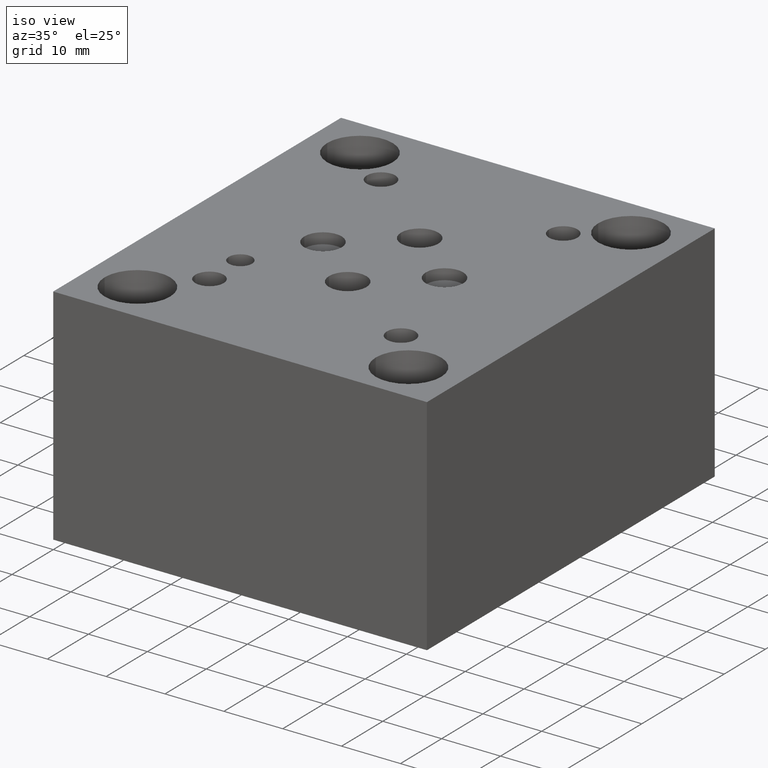
[diagram: clean part render]
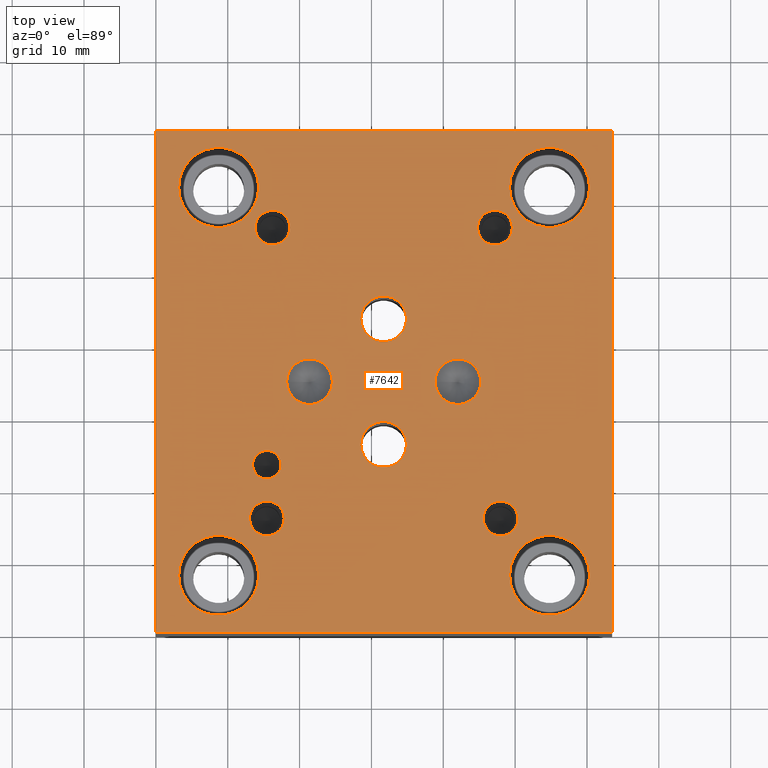
[diagram: tour spotlight — one face highlighted and labeled with its STEP entity id]
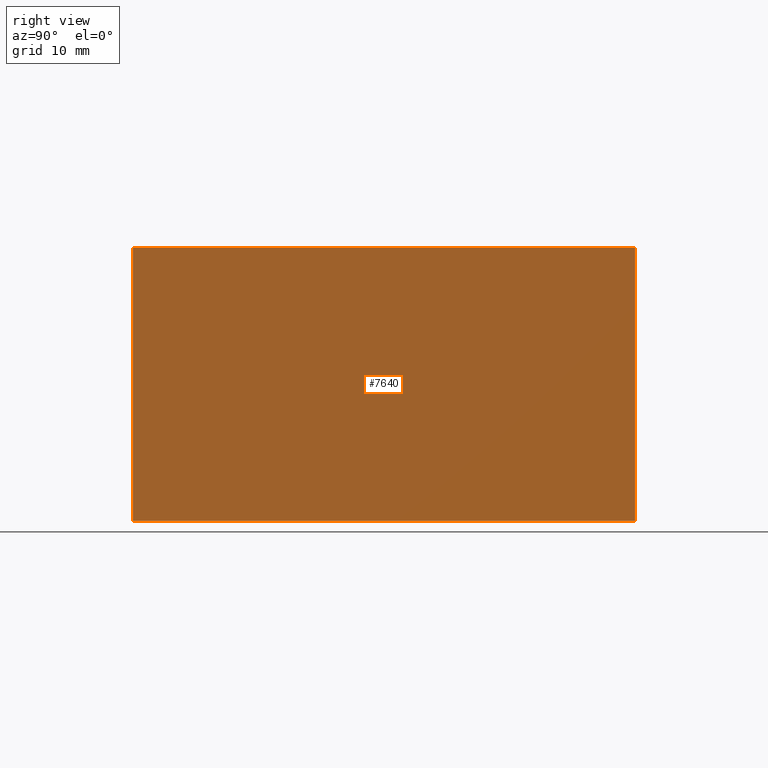
[diagram: tour spotlight — one face highlighted and labeled with its STEP entity id]
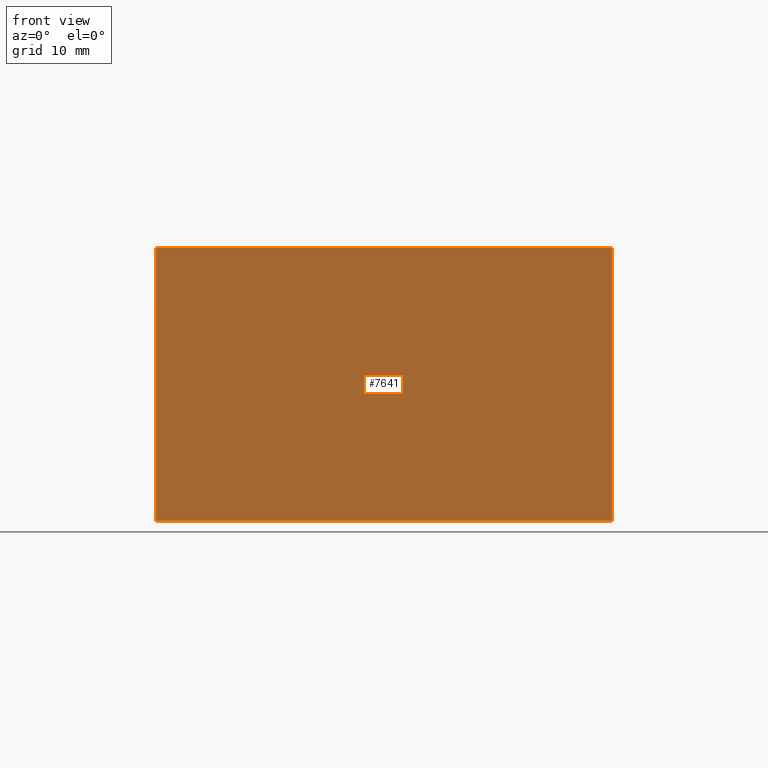
[diagram: tour spotlight — one face highlighted and labeled with its STEP entity id]
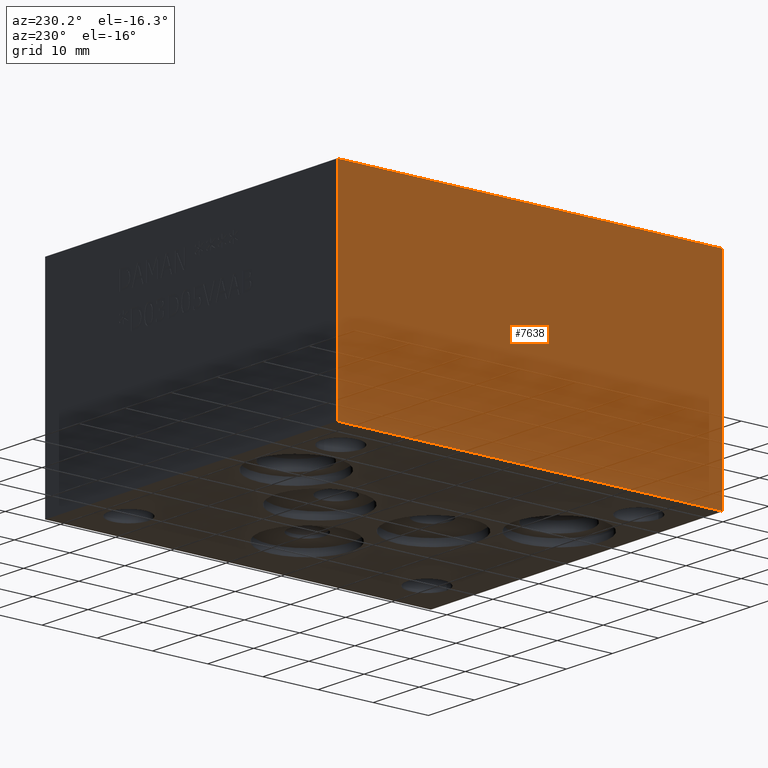
[diagram: tour spotlight — one face highlighted and labeled with its STEP entity id]
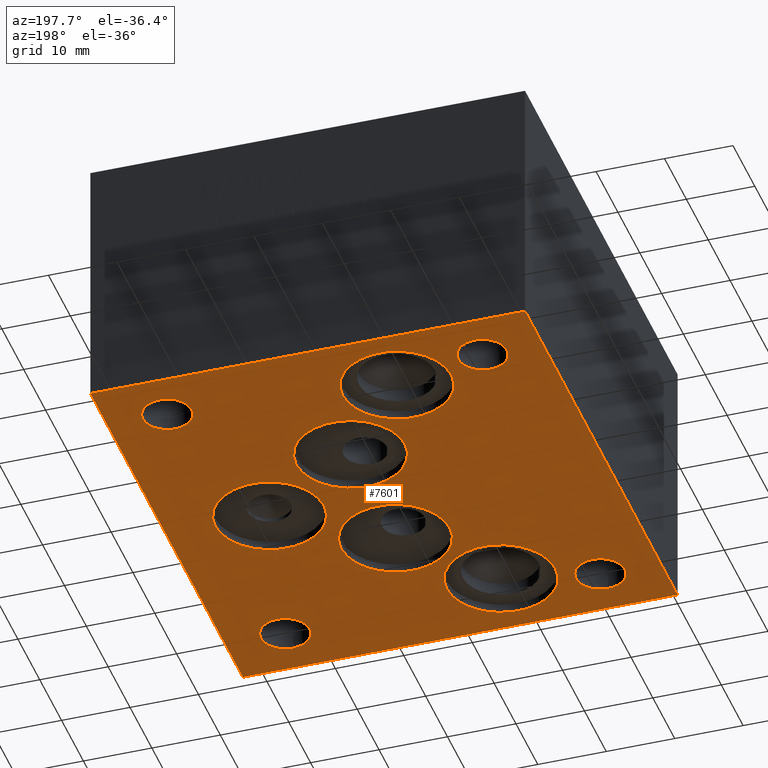
[diagram: tour spotlight — one face highlighted and labeled with its STEP entity id]
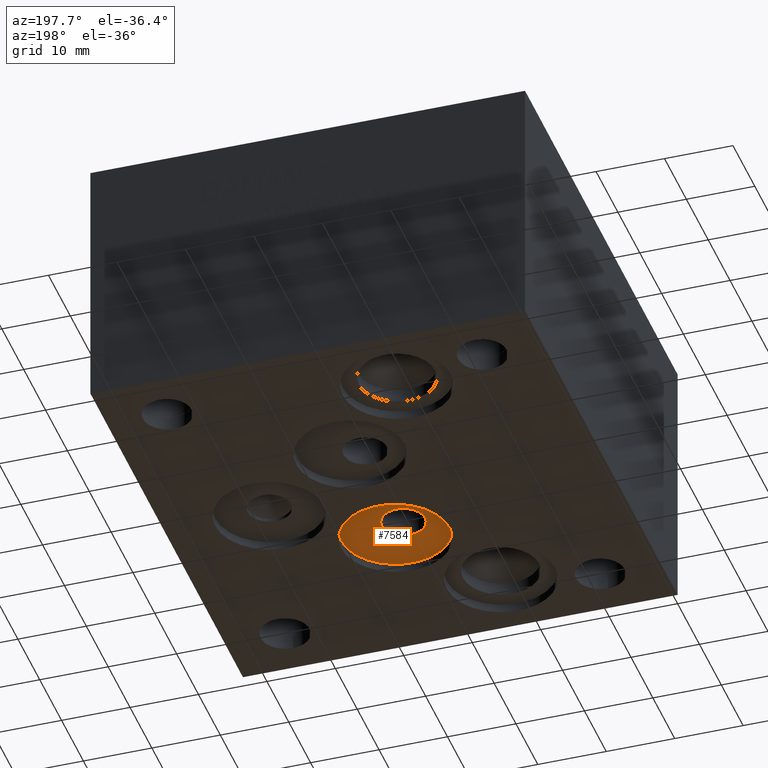
[diagram: tour spotlight — one face highlighted and labeled with its STEP entity id]
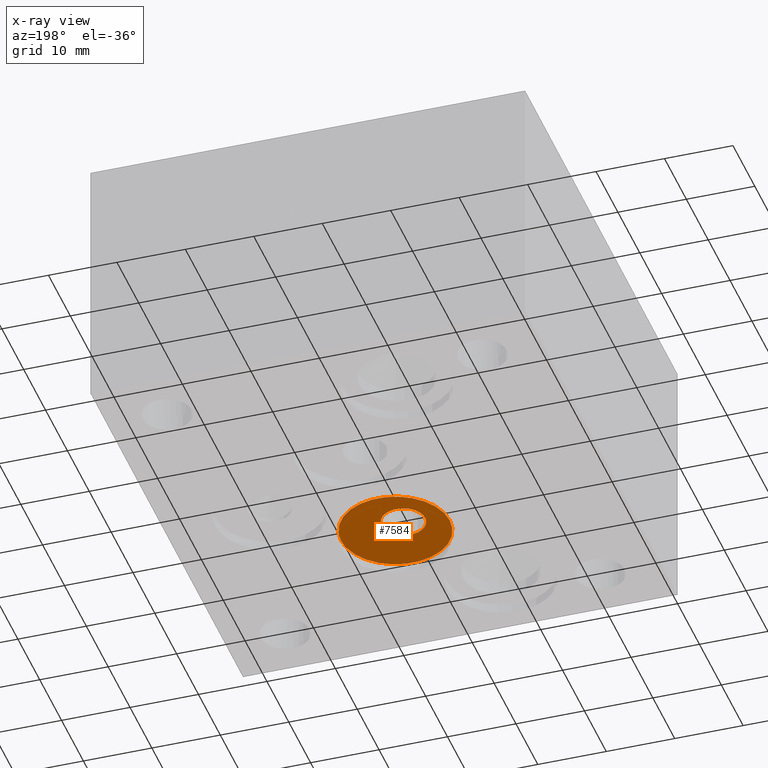
[diagram: x-ray of the same camera — body ghosted, this tour face saturated]
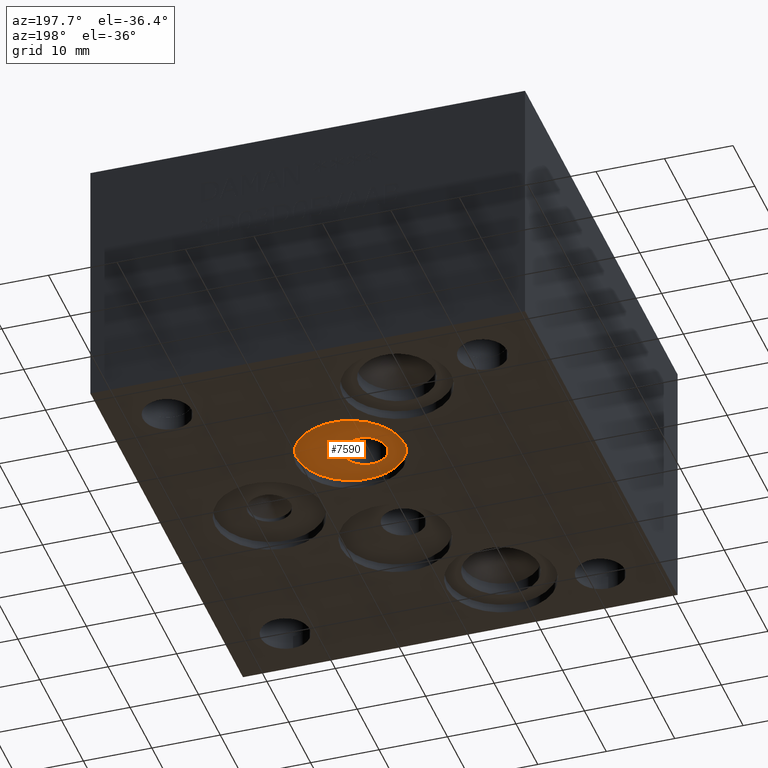
[diagram: tour spotlight — one face highlighted and labeled with its STEP entity id]
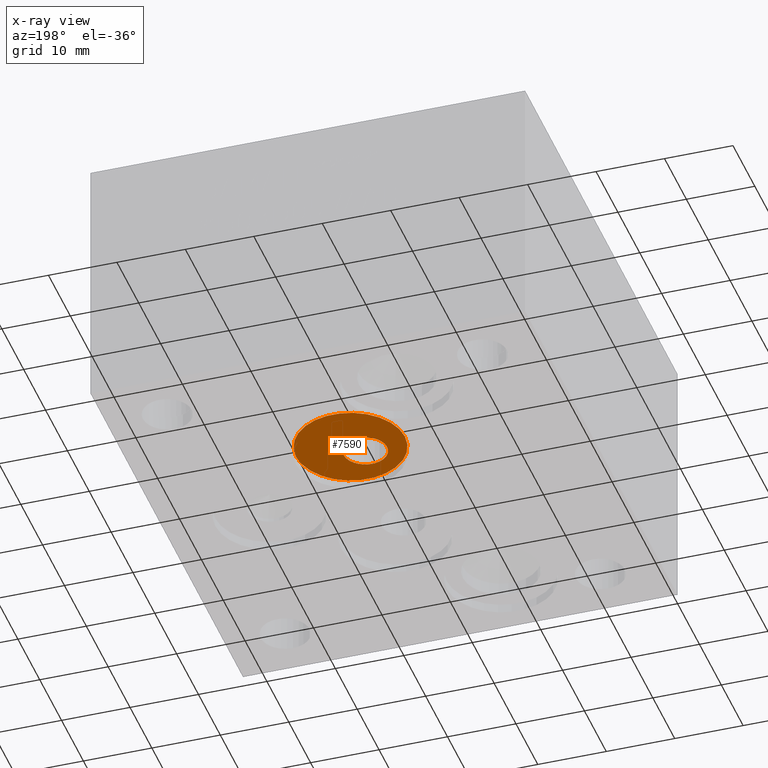
[diagram: x-ray of the same camera — body ghosted, this tour face saturated]
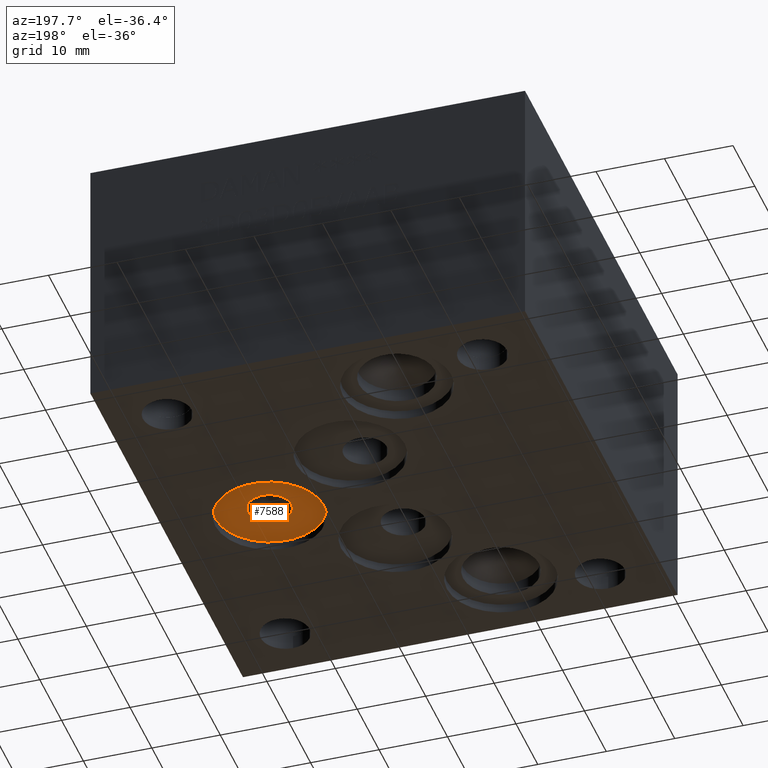
[diagram: tour spotlight — one face highlighted and labeled with its STEP entity id]
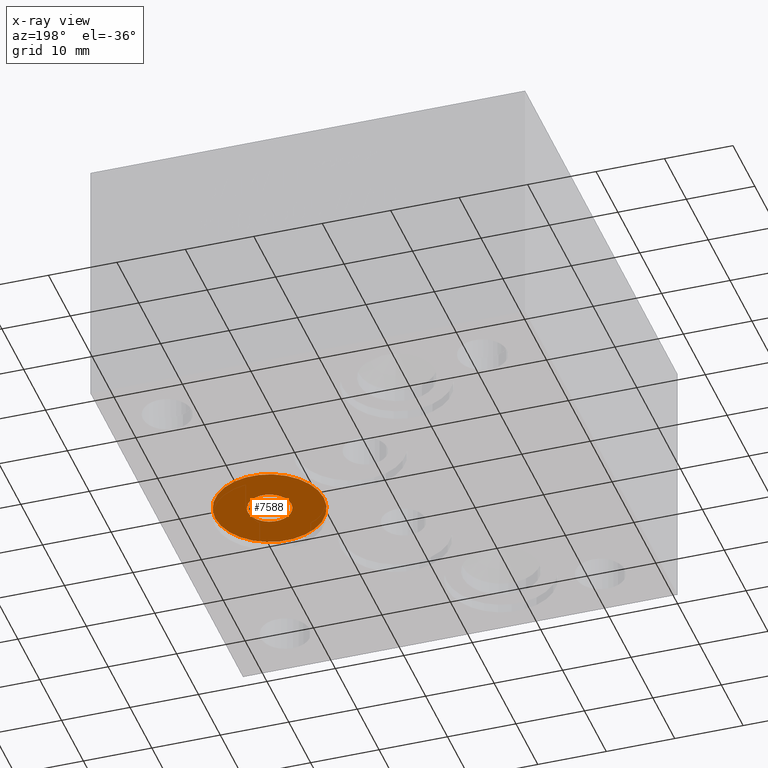
[diagram: x-ray of the same camera — body ghosted, this tour face saturated]
A machine part: a face-by-face anatomy tour. The part has 396 B-rep faces; the first image is the clean iso view, then the 8 largest visible faces are spotlighted one at a time (largest first), each with its STEP entity span.

Face 1 — top view, entity #7642. In plain terms, the highlighted planar face has unit normal (0, 0, 1).
Definition (entity closure, byte-faithful):
#81=CIRCLE('',#7957,5.5626);
#84=CIRCLE('',#7963,5.5626);
#87=CIRCLE('',#7969,5.5626);
#90=CIRCLE('',#7975,5.5626);
#91=CIRCLE('',#7978,3.175);
#92=CIRCLE('',#7980,3.175);
#94=CIRCLE('',#7984,3.175);
#96=CIRCLE('',#7988,3.175);
#98=CIRCLE('',#7992,1.9812);
#102=CIRCLE('',#7999,2.413);
#106=CIRCLE('',#8007,2.413);
#110=CIRCLE('',#8015,2.413);
#114=CIRCLE('',#8023,2.413);
#181=FACE_BOUND('',#1326,.T.);
#182=FACE_BOUND('',#1327,.T.);
#183=FACE_BOUND('',#1328,.T.);
#184=FACE_BOUND('',#1329,.T.);
#185=FACE_BOUND('',#1330,.T.);
#186=FACE_BOUND('',#1331,.T.);
#187=FACE_BOUND('',#1332,.T.);
#188=FACE_BOUND('',#1333,.T.);
#189=FACE_BOUND('',#1334,.T.);
#190=FACE_BOUND('',#1335,.T.);
#191=FACE_BOUND('',#1336,.T.);
#192=FACE_BOUND('',#1337,.T.);
#193=FACE_BOUND('',#1338,.T.);
#877=FACE_OUTER_BOUND('',#1325,.T.);
#1325=EDGE_LOOP('',(#6655,#6656,#6657,#6658));
#1326=EDGE_LOOP('',(#6659));
#1327=EDGE_LOOP('',(#6660));
#1328=EDGE_LOOP('',(#6661));
#1329=EDGE_LOOP('',(#6662));
#1330=EDGE_LOOP('',(#6663));
#1331=EDGE_LOOP('',(#6664));
#1332=EDGE_LOOP('',(#6665));
#1333=EDGE_LOOP('',(#6666));
#1334=EDGE_LOOP('',(#6667));
#1335=EDGE_LOOP('',(#6668));
#1336=EDGE_LOOP('',(#6669));
#1337=EDGE_LOOP('',(#6670));
#1338=EDGE_LOOP('',(#6671));
#1676=LINE('',#11693,#2447);
#2106=LINE('',#12966,#2877);
#2107=LINE('',#12970,#2878);
#2109=LINE('',#12973,#2880);
#2447=VECTOR('',#8557,10.);
#2877=VECTOR('',#9531,10.);
#2878=VECTOR('',#9536,10.);
#2880=VECTOR('',#9540,10.);
#3221=VERTEX_POINT('',#11690);
#3222=VERTEX_POINT('',#11692);
#3530=VERTEX_POINT('',#12826);
#3533=VERTEX_POINT('',#12837);
#3536=VERTEX_POINT('',#12848);
#3539=VERTEX_POINT('',#12859);
#3540=VERTEX_POINT('',#12865);
#3541=VERTEX_POINT('',#12869);
#3544=VERTEX_POINT('',#12878);
#3547=VERTEX_POINT('',#12887);
#3550=VERTEX_POINT('',#12896);
#3555=VERTEX_POINT('',#12910);
#3560=VERTEX_POINT('',#12926);
#3565=VERTEX_POINT('',#12942);
#3570=VERTEX_POINT('',#12958);
#3571=VERTEX_POINT('',#12964);
#3572=VERTEX_POINT('',#12969);
#4082=EDGE_CURVE('',#3222,#3221,#1676,.T.);
#4539=EDGE_CURVE('',#3530,#3530,#81,.T.);
#4544=EDGE_CURVE('',#3533,#3533,#84,.T.);
#4549=EDGE_CURVE('',#3536,#3536,#87,.T.);
#4554=EDGE_CURVE('',#3539,#3539,#90,.T.);
#4557=EDGE_CURVE('',#3540,#3540,#91,.T.);
#4559=EDGE_CURVE('',#3541,#3541,#92,.T.);
#4563=EDGE_CURVE('',#3544,#3544,#94,.T.);
#4567=EDGE_CURVE('',#3547,#3547,#96,.T.);
#4571=EDGE_CURVE('',#3550,#3550,#98,.T.);
#4577=EDGE_CURVE('',#3555,#3555,#102,.T.);
#4584=EDGE_CURVE('',#3560,#3560,#106,.T.);
#4591=EDGE_CURVE('',#3565,#3565,#110,.T.);
#4598=EDGE_CURVE('',#3570,#3570,#114,.T.);
#4602=EDGE_CURVE('',#3221,#3571,#2106,.T.);
#4603=EDGE_CURVE('',#3572,#3222,#2107,.T.);
#4605=EDGE_CURVE('',#3571,#3572,#2109,.T.);
#6655=ORIENTED_EDGE('',*,*,#4605,.T.);
#6656=ORIENTED_EDGE('',*,*,#4603,.T.);
#6657=ORIENTED_EDGE('',*,*,#4082,.T.);
#6658=ORIENTED_EDGE('',*,*,#4602,.T.);
#6659=ORIENTED_EDGE('',*,*,#4539,.T.);
#6660=ORIENTED_EDGE('',*,*,#4544,.T.);
#6661=ORIENTED_EDGE('',*,*,#4549,.T.);
#6662=ORIENTED_EDGE('',*,*,#4554,.T.);
#6663=ORIENTED_EDGE('',*,*,#4557,.T.);
#6664=ORIENTED_EDGE('',*,*,#4559,.T.);
#6665=ORIENTED_EDGE('',*,*,#4563,.T.);
#6666=ORIENTED_EDGE('',*,*,#4567,.T.);
#6667=ORIENTED_EDGE('',*,*,#4571,.T.);
#6668=ORIENTED_EDGE('',*,*,#4577,.T.);
#6669=ORIENTED_EDGE('',*,*,#4584,.T.);
#6670=ORIENTED_EDGE('',*,*,#4591,.T.);
#6671=ORIENTED_EDGE('',*,*,#4598,.T.);
#6926=PLANE('',#8029);
#7642=ADVANCED_FACE('',(#877,#181,#182,#183,#184,#185,#186,#187,#188,#189,
#190,#191,#192,#193),#6926,.T.);
#7957=AXIS2_PLACEMENT_3D('',#12827,#9364,#9365);
#7963=AXIS2_PLACEMENT_3D('',#12838,#9378,#9379);
#7969=AXIS2_PLACEMENT_3D('',#12849,#9392,#9393);
#7975=AXIS2_PLACEMENT_3D('',#12860,#9406,#9407);
#7978=AXIS2_PLACEMENT_3D('',#12866,#9414,#9415);
#7980=AXIS2_PLACEMENT_3D('',#12870,#9419,#9420);
#7984=AXIS2_PLACEMENT_3D('',#12879,#9429,#9430);
#7988=AXIS2_PLACEMENT_3D('',#12888,#9439,#9440);
#7992=AXIS2_PLACEMENT_3D('',#12897,#9449,#9450);
#7999=AXIS2_PLACEMENT_3D('',#12911,#9465,#9466);
#8007=AXIS2_PLACEMENT_3D('',#12927,#9484,#9485);
#8015=AXIS2_PLACEMENT_3D('',#12943,#9503,#9504);
#8023=AXIS2_PLACEMENT_3D('',#12959,#9522,#9523);
#8029=AXIS2_PLACEMENT_3D('',#12974,#9541,#9542);
#8557=DIRECTION('',(-1.,0.,0.));
#9364=DIRECTION('center_axis',(0.,0.,-1.));
#9365=DIRECTION('ref_axis',(1.,0.,0.));
#9378=DIRECTION('center_axis',(0.,0.,-1.));
#9379=DIRECTION('ref_axis',(1.,0.,0.));
#9392=DIRECTION('center_axis',(0.,0.,-1.));
#9393=DIRECTION('ref_axis',(1.,0.,0.));
#9406=DIRECTION('center_axis',(0.,0.,-1.));
#9407=DIRECTION('ref_axis',(1.,0.,0.));
#9414=DIRECTION('center_axis',(0.,0.,-1.));
#9415=DIRECTION('ref_axis',(1.,0.,0.));
#9419=DIRECTION('center_axis',(0.,0.,-1.));
#9420=DIRECTION('ref_axis',(1.,0.,0.));
#9429=DIRECTION('center_axis',(0.,0.,-1.));
#9430=DIRECTION('ref_axis',(1.,0.,0.));
#9439=DIRECTION('center_axis',(0.,0.,-1.));
#9440=DIRECTION('ref_axis',(1.,0.,0.));
#9449=DIRECTION('center_axis',(0.,0.,-1.));
#9450=DIRECTION('ref_axis',(1.,0.,0.));
#9465=DIRECTION('center_axis',(0.,0.,-1.));
#9466=DIRECTION('ref_axis',(1.,0.,0.));
#9484=DIRECTION('center_axis',(0.,0.,-1.));
#9485=DIRECTION('ref_axis',(1.,0.,0.));
#9503=DIRECTION('center_axis',(0.,0.,-1.));
#9504=DIRECTION('ref_axis',(1.,0.,0.));
#9522=DIRECTION('center_axis',(0.,0.,-1.));
#9523=DIRECTION('ref_axis',(1.,0.,0.));
#9531=DIRECTION('',(0.,-1.,0.));
#9536=DIRECTION('',(0.,1.,0.));
#9540=DIRECTION('',(1.,0.,0.));
#9541=DIRECTION('center_axis',(0.,0.,1.));
#9542=DIRECTION('ref_axis',(1.,0.,0.));
#11690=CARTESIAN_POINT('',(0.,69.85,38.1));
#11692=CARTESIAN_POINT('',(63.5,69.85,38.1));
#11693=CARTESIAN_POINT('',(63.5,69.85,38.1));
#12826=CARTESIAN_POINT('',(3.175,61.9506,38.1));
#12827=CARTESIAN_POINT('Origin',(8.7376,61.9506,38.1));
#12837=CARTESIAN_POINT('',(3.175,7.9502,38.1));
#12838=CARTESIAN_POINT('Origin',(8.7376,7.9502,38.1));
#12848=CARTESIAN_POINT('',(49.23155,7.9502,38.1));
#12849=CARTESIAN_POINT('Origin',(54.79415,7.9502,38.1));
#12859=CARTESIAN_POINT('',(49.23155,61.9506,38.1));
#12860=CARTESIAN_POINT('Origin',(54.79415,61.9506,38.1));
#12865=CARTESIAN_POINT('',(28.5242,43.6626,38.1));
#12866=CARTESIAN_POINT('Origin',(31.6992,43.6626,38.1));
#12869=CARTESIAN_POINT('',(28.5242,26.1874,38.1));
#12870=CARTESIAN_POINT('Origin',(31.6992,26.1874,38.1));
#12878=CARTESIAN_POINT('',(18.2118,34.925,38.1));
#12879=CARTESIAN_POINT('Origin',(21.3868,34.925,38.1));
#12887=CARTESIAN_POINT('',(38.862,34.925,38.1));
#12888=CARTESIAN_POINT('Origin',(42.037,34.925,38.1));
#12896=CARTESIAN_POINT('',(13.462,23.368,38.1));
#12897=CARTESIAN_POINT('Origin',(15.4432,23.368,38.1));
#12910=CARTESIAN_POINT('',(45.5676,15.875,38.1));
#12911=CARTESIAN_POINT('Origin',(47.9806,15.875,38.1));
#12926=CARTESIAN_POINT('',(13.8176,56.3626,38.1));
#12927=CARTESIAN_POINT('Origin',(16.2306,56.3626,38.1));
#12942=CARTESIAN_POINT('',(44.7802,56.3626,38.1));
#12943=CARTESIAN_POINT('Origin',(47.1932,56.3626,38.1));
#12958=CARTESIAN_POINT('',(13.0302,15.875,38.1));
#12959=CARTESIAN_POINT('Origin',(15.4432,15.875,38.1));
#12964=CARTESIAN_POINT('',(0.,0.,38.1));
#12966=CARTESIAN_POINT('',(0.,69.85,38.1));
#12969=CARTESIAN_POINT('',(63.5,0.,38.1));
#12970=CARTESIAN_POINT('',(63.5,0.,38.1));
#12973=CARTESIAN_POINT('',(0.,0.,38.1));
#12974=CARTESIAN_POINT('Origin',(31.75,34.925,38.1));

Face 2 — right view, entity #7640. In plain terms, the highlighted planar face has unit normal (1, 0, 0).
Definition (entity closure, byte-faithful):
#875=FACE_OUTER_BOUND('',#1323,.T.);
#1323=EDGE_LOOP('',(#6647,#6648,#6649,#6650));
#1677=LINE('',#11694,#2448);
#2076=LINE('',#12811,#2847);
#2107=LINE('',#12970,#2878);
#2108=LINE('',#12971,#2879);
#2448=VECTOR('',#8558,10.);
#2847=VECTOR('',#9343,10.);
#2878=VECTOR('',#9536,10.);
#2879=VECTOR('',#9537,10.);
#3219=VERTEX_POINT('',#11687);
#3222=VERTEX_POINT('',#11692);
#3525=VERTEX_POINT('',#12808);
#3572=VERTEX_POINT('',#12969);
#4083=EDGE_CURVE('',#3219,#3222,#1677,.T.);
#4530=EDGE_CURVE('',#3525,#3219,#2076,.T.);
#4603=EDGE_CURVE('',#3572,#3222,#2107,.T.);
#4604=EDGE_CURVE('',#3525,#3572,#2108,.T.);
#6647=ORIENTED_EDGE('',*,*,#4530,.T.);
#6648=ORIENTED_EDGE('',*,*,#4083,.T.);
#6649=ORIENTED_EDGE('',*,*,#4603,.F.);
#6650=ORIENTED_EDGE('',*,*,#4604,.F.);
#6924=PLANE('',#8027);
#7640=ADVANCED_FACE('',(#875),#6924,.T.);
#8027=AXIS2_PLACEMENT_3D('',#12968,#9534,#9535);
#8558=DIRECTION('',(0.,0.,1.));
#9343=DIRECTION('',(0.,1.,0.));
#9534=DIRECTION('center_axis',(1.,0.,0.));
#9535=DIRECTION('ref_axis',(0.,1.,0.));
#9536=DIRECTION('',(0.,1.,0.));
#9537=DIRECTION('',(0.,0.,1.));
#11687=CARTESIAN_POINT('',(63.5,69.85,0.));
#11692=CARTESIAN_POINT('',(63.5,69.85,38.1));
#11694=CARTESIAN_POINT('',(63.5,69.85,0.));
#12808=CARTESIAN_POINT('',(63.5,0.,0.));
#12811=CARTESIAN_POINT('',(63.5,0.,0.));
#12968=CARTESIAN_POINT('Origin',(63.5,0.,0.));
#12969=CARTESIAN_POINT('',(63.5,0.,38.1));
#12970=CARTESIAN_POINT('',(63.5,0.,38.1));
#12971=CARTESIAN_POINT('',(63.5,0.,0.));

Face 3 — front view, entity #7641. In plain terms, the highlighted planar face has unit normal (0, -1, 0).
Definition (entity closure, byte-faithful):
#876=FACE_OUTER_BOUND('',#1324,.T.);
#1324=EDGE_LOOP('',(#6651,#6652,#6653,#6654));
#2074=LINE('',#12809,#2845);
#2105=LINE('',#12965,#2876);
#2108=LINE('',#12971,#2879);
#2109=LINE('',#12973,#2880);
#2845=VECTOR('',#9341,10.);
#2876=VECTOR('',#9530,10.);
#2879=VECTOR('',#9537,10.);
#2880=VECTOR('',#9540,10.);
#3524=VERTEX_POINT('',#12807);
#3525=VERTEX_POINT('',#12808);
#3571=VERTEX_POINT('',#12964);
#3572=VERTEX_POINT('',#12969);
#4528=EDGE_CURVE('',#3524,#3525,#2074,.T.);
#4601=EDGE_CURVE('',#3524,#3571,#2105,.T.);
#4604=EDGE_CURVE('',#3525,#3572,#2108,.T.);
#4605=EDGE_CURVE('',#3571,#3572,#2109,.T.);
#6651=ORIENTED_EDGE('',*,*,#4528,.T.);
#6652=ORIENTED_EDGE('',*,*,#4604,.T.);
#6653=ORIENTED_EDGE('',*,*,#4605,.F.);
#6654=ORIENTED_EDGE('',*,*,#4601,.F.);
#6925=PLANE('',#8028);
#7641=ADVANCED_FACE('',(#876),#6925,.T.);
#8028=AXIS2_PLACEMENT_3D('',#12972,#9538,#9539);
#9341=DIRECTION('',(1.,0.,0.));
#9530=DIRECTION('',(0.,0.,1.));
#9537=DIRECTION('',(0.,0.,1.));
#9538=DIRECTION('center_axis',(0.,-1.,0.));
#9539=DIRECTION('ref_axis',(1.,0.,0.));
#9540=DIRECTION('',(1.,0.,0.));
#12807=CARTESIAN_POINT('',(0.,0.,0.));
#12808=CARTESIAN_POINT('',(63.5,0.,0.));
#12809=CARTESIAN_POINT('',(0.,0.,0.));
#12964=CARTESIAN_POINT('',(0.,0.,38.1));
#12965=CARTESIAN_POINT('',(0.,0.,0.));
#12969=CARTESIAN_POINT('',(63.5,0.,38.1));
#12971=CARTESIAN_POINT('',(63.5,0.,0.));
#12972=CARTESIAN_POINT('Origin',(0.,0.,0.));
#12973=CARTESIAN_POINT('',(0.,0.,38.1));

Face 4 — auxiliary view, entity #7638. In plain terms, the highlighted planar face has unit normal (-1, 0, 0).
Definition (entity closure, byte-faithful):
#873=FACE_OUTER_BOUND('',#1321,.T.);
#1321=EDGE_LOOP('',(#6640,#6641,#6642,#6643));
#1675=LINE('',#11691,#2446);
#2075=LINE('',#12810,#2846);
#2105=LINE('',#12965,#2876);
#2106=LINE('',#12966,#2877);
#2446=VECTOR('',#8556,10.);
#2846=VECTOR('',#9342,10.);
#2876=VECTOR('',#9530,10.);
#2877=VECTOR('',#9531,10.);
#3220=VERTEX_POINT('',#11688);
#3221=VERTEX_POINT('',#11690);
#3524=VERTEX_POINT('',#12807);
#3571=VERTEX_POINT('',#12964);
#4081=EDGE_CURVE('',#3220,#3221,#1675,.T.);
#4529=EDGE_CURVE('',#3220,#3524,#2075,.T.);
#4601=EDGE_CURVE('',#3524,#3571,#2105,.T.);
#4602=EDGE_CURVE('',#3221,#3571,#2106,.T.);
#6640=ORIENTED_EDGE('',*,*,#4529,.T.);
#6641=ORIENTED_EDGE('',*,*,#4601,.T.);
#6642=ORIENTED_EDGE('',*,*,#4602,.F.);
#6643=ORIENTED_EDGE('',*,*,#4081,.F.);
#6922=PLANE('',#8025);
#7638=ADVANCED_FACE('',(#873),#6922,.T.);
#8025=AXIS2_PLACEMENT_3D('',#12963,#9528,#9529);
#8556=DIRECTION('',(0.,0.,1.));
#9342=DIRECTION('',(0.,-1.,0.));
#9528=DIRECTION('center_axis',(-1.,0.,0.));
#9529=DIRECTION('ref_axis',(0.,-1.,0.));
#9530=DIRECTION('',(0.,0.,1.));
#9531=DIRECTION('',(0.,-1.,0.));
#11688=CARTESIAN_POINT('',(0.,69.85,0.));
#11690=CARTESIAN_POINT('',(0.,69.85,38.1));
#11691=CARTESIAN_POINT('',(0.,69.85,0.));
#12807=CARTESIAN_POINT('',(0.,0.,0.));
#12810=CARTESIAN_POINT('',(0.,69.85,0.));
#12963=CARTESIAN_POINT('Origin',(0.,69.85,0.));
#12964=CARTESIAN_POINT('',(0.,0.,38.1));
#12965=CARTESIAN_POINT('',(0.,0.,0.));
#12966=CARTESIAN_POINT('',(0.,69.85,38.1));

Face 5 — auxiliary view, entity #7601. In plain terms, the highlighted planar face has unit normal (0, 0, 1).
Definition (entity closure, byte-faithful):
#53=CIRCLE('',#7909,7.9375);
#56=CIRCLE('',#7914,7.9375);
#58=CIRCLE('',#7918,7.9375);
#60=CIRCLE('',#7922,7.9375);
#63=CIRCLE('',#7927,7.9375);
#66=CIRCLE('',#7933,3.5687);
#68=CIRCLE('',#7937,3.5687);
#70=CIRCLE('',#7941,3.5687);
#72=CIRCLE('',#7945,3.5687);
#73=CIRCLE('',#7947,3.5687);
#74=CIRCLE('',#7948,3.5687);
#75=CIRCLE('',#7949,3.5687);
#76=CIRCLE('',#7950,3.5687);
#77=CIRCLE('',#7951,3.5687);
#78=CIRCLE('',#7952,3.5687);
#164=FACE_BOUND('',#1268,.T.);
#165=FACE_BOUND('',#1269,.T.);
#166=FACE_BOUND('',#1270,.T.);
#167=FACE_BOUND('',#1271,.T.);
#168=FACE_BOUND('',#1272,.T.);
#169=FACE_BOUND('',#1273,.T.);
#170=FACE_BOUND('',#1274,.T.);
#171=FACE_BOUND('',#1275,.T.);
#172=FACE_BOUND('',#1276,.T.);
#836=FACE_OUTER_BOUND('',#1267,.T.);
#1267=EDGE_LOOP('',(#6484,#6485,#6486,#6487));
#1268=EDGE_LOOP('',(#6488));
#1269=EDGE_LOOP('',(#6489));
#1270=EDGE_LOOP('',(#6490));
#1271=EDGE_LOOP('',(#6491));
#1272=EDGE_LOOP('',(#6492));
#1273=EDGE_LOOP('',(#6493,#6494,#6495));
#1274=EDGE_LOOP('',(#6496,#6497,#6498));
#1275=EDGE_LOOP('',(#6499,#6500));
#1276=EDGE_LOOP('',(#6501,#6502));
#1674=LINE('',#11689,#2445);
#2074=LINE('',#12809,#2845);
#2075=LINE('',#12810,#2846);
#2076=LINE('',#12811,#2847);
#2445=VECTOR('',#8555,10.);
#2845=VECTOR('',#9341,10.);
#2846=VECTOR('',#9342,10.);
#2847=VECTOR('',#9343,10.);
#3219=VERTEX_POINT('',#11687);
#3220=VERTEX_POINT('',#11688);
#3494=VERTEX_POINT('',#12632);
#3497=VERTEX_POINT('',#12641);
#3499=VERTEX_POINT('',#12648);
#3501=VERTEX_POINT('',#12655);
#3504=VERTEX_POINT('',#12664);
#3509=VERTEX_POINT('',#12700);
#3510=VERTEX_POINT('',#12702);
#3513=VERTEX_POINT('',#12733);
#3514=VERTEX_POINT('',#12735);
#3518=VERTEX_POINT('',#12768);
#3519=VERTEX_POINT('',#12770);
#3522=VERTEX_POINT('',#12801);
#3523=VERTEX_POINT('',#12803);
#3524=VERTEX_POINT('',#12807);
#3525=VERTEX_POINT('',#12808);
#3526=VERTEX_POINT('',#12812);
#3527=VERTEX_POINT('',#12815);
#4080=EDGE_CURVE('',#3219,#3220,#1674,.T.);
#4489=EDGE_CURVE('',#3494,#3494,#53,.T.);
#4493=EDGE_CURVE('',#3497,#3497,#56,.T.);
#4496=EDGE_CURVE('',#3499,#3499,#58,.T.);
#4499=EDGE_CURVE('',#3501,#3501,#60,.T.);
#4503=EDGE_CURVE('',#3504,#3504,#63,.T.);
#4511=EDGE_CURVE('',#3509,#3510,#66,.T.);
#4516=EDGE_CURVE('',#3513,#3514,#68,.T.);
#4522=EDGE_CURVE('',#3518,#3519,#70,.T.);
#4527=EDGE_CURVE('',#3522,#3523,#72,.T.);
#4528=EDGE_CURVE('',#3524,#3525,#2074,.T.);
#4529=EDGE_CURVE('',#3220,#3524,#2075,.T.);
#4530=EDGE_CURVE('',#3525,#3219,#2076,.T.);
#4531=EDGE_CURVE('',#3514,#3526,#73,.T.);
#4532=EDGE_CURVE('',#3526,#3513,#74,.T.);
#4533=EDGE_CURVE('',#3523,#3527,#75,.T.);
#4534=EDGE_CURVE('',#3527,#3522,#76,.T.);
#4535=EDGE_CURVE('',#3510,#3509,#77,.T.);
#4536=EDGE_CURVE('',#3519,#3518,#78,.T.);
#6484=ORIENTED_EDGE('',*,*,#4528,.F.);
#6485=ORIENTED_EDGE('',*,*,#4529,.F.);
#6486=ORIENTED_EDGE('',*,*,#4080,.F.);
#6487=ORIENTED_EDGE('',*,*,#4530,.F.);
#6488=ORIENTED_EDGE('',*,*,#4489,.T.);
#6489=ORIENTED_EDGE('',*,*,#4493,.T.);
#6490=ORIENTED_EDGE('',*,*,#4496,.T.);
#6491=ORIENTED_EDGE('',*,*,#4499,.T.);
#6492=ORIENTED_EDGE('',*,*,#4503,.T.);
#6493=ORIENTED_EDGE('',*,*,#4516,.T.);
#6494=ORIENTED_EDGE('',*,*,#4531,.T.);
#6495=ORIENTED_EDGE('',*,*,#4532,.T.);
#6496=ORIENTED_EDGE('',*,*,#4527,.T.);
#6497=ORIENTED_EDGE('',*,*,#4533,.T.);
#6498=ORIENTED_EDGE('',*,*,#4534,.T.);
#6499=ORIENTED_EDGE('',*,*,#4511,.T.);
#6500=ORIENTED_EDGE('',*,*,#4535,.T.);
#6501=ORIENTED_EDGE('',*,*,#4522,.T.);
#6502=ORIENTED_EDGE('',*,*,#4536,.T.);
#6913=PLANE('',#7946);
#7601=ADVANCED_FACE('',(#836,#164,#165,#166,#167,#168,#169,#170,#171,#172),
#6913,.F.);
#7909=AXIS2_PLACEMENT_3D('',#12633,#9252,#9253);
#7914=AXIS2_PLACEMENT_3D('',#12642,#9263,#9264);
#7918=AXIS2_PLACEMENT_3D('',#12649,#9272,#9273);
#7922=AXIS2_PLACEMENT_3D('',#12656,#9281,#9282);
#7927=AXIS2_PLACEMENT_3D('',#12665,#9292,#9293);
#7933=AXIS2_PLACEMENT_3D('',#12704,#9307,#9308);
#7937=AXIS2_PLACEMENT_3D('',#12737,#9317,#9318);
#7941=AXIS2_PLACEMENT_3D('',#12772,#9327,#9328);
#7945=AXIS2_PLACEMENT_3D('',#12805,#9337,#9338);
#7946=AXIS2_PLACEMENT_3D('',#12806,#9339,#9340);
#7947=AXIS2_PLACEMENT_3D('',#12813,#9344,#9345);
#7948=AXIS2_PLACEMENT_3D('',#12814,#9346,#9347);
#7949=AXIS2_PLACEMENT_3D('',#12816,#9348,#9349);
#7950=AXIS2_PLACEMENT_3D('',#12817,#9350,#9351);
#7951=AXIS2_PLACEMENT_3D('',#12818,#9352,#9353);
#7952=AXIS2_PLACEMENT_3D('',#12819,#9354,#9355);
#8555=DIRECTION('',(-1.,0.,0.));
#9252=DIRECTION('center_axis',(0.,0.,1.));
#9253=DIRECTION('ref_axis',(1.,0.,0.));
#9263=DIRECTION('center_axis',(0.,0.,1.));
#9264=DIRECTION('ref_axis',(1.,0.,0.));
#9272=DIRECTION('center_axis',(0.,0.,1.));
#9273=DIRECTION('ref_axis',(1.,0.,0.));
#9281=DIRECTION('center_axis',(0.,0.,1.));
#9282=DIRECTION('ref_axis',(1.,0.,0.));
#9292=DIRECTION('center_axis',(0.,0.,1.));
#9293=DIRECTION('ref_axis',(1.,0.,0.));
#9307=DIRECTION('center_axis',(0.,0.,1.));
#9308=DIRECTION('ref_axis',(1.,0.,0.));
#9317=DIRECTION('center_axis',(0.,0.,1.));
#9318=DIRECTION('ref_axis',(1.,0.,0.));
#9327=DIRECTION('center_axis',(0.,0.,1.));
#9328=DIRECTION('ref_axis',(1.,0.,0.));
#9337=DIRECTION('center_axis',(0.,0.,1.));
#9338=DIRECTION('ref_axis',(1.,0.,0.));
#9339=DIRECTION('center_axis',(0.,0.,1.));
#9340=DIRECTION('ref_axis',(1.,0.,0.));
#9341=DIRECTION('',(1.,0.,0.));
#9342=DIRECTION('',(0.,-1.,0.));
#9343=DIRECTION('',(0.,1.,0.));
#9344=DIRECTION('center_axis',(0.,0.,1.));
#9345=DIRECTION('ref_axis',(1.,0.,0.));
#9346=DIRECTION('center_axis',(0.,0.,1.));
#9347=DIRECTION('ref_axis',(1.,0.,0.));
#9348=DIRECTION('center_axis',(0.,0.,1.));
#9349=DIRECTION('ref_axis',(1.,0.,0.));
#9350=DIRECTION('center_axis',(0.,0.,1.));
#9351=DIRECTION('ref_axis',(1.,0.,0.));
#9352=DIRECTION('center_axis',(0.,0.,1.));
#9353=DIRECTION('ref_axis',(1.,0.,0.));
#9354=DIRECTION('center_axis',(0.,0.,1.));
#9355=DIRECTION('ref_axis',(1.,0.,0.));
#11687=CARTESIAN_POINT('',(63.5,69.85,0.));
#11688=CARTESIAN_POINT('',(0.,69.85,0.));
#11689=CARTESIAN_POINT('',(63.5,69.85,0.));
#12632=CARTESIAN_POINT('',(25.4381,24.6126,0.));
#12633=CARTESIAN_POINT('Origin',(33.3756,24.6126,0.));
#12641=CARTESIAN_POINT('',(14.3129,58.7502,0.));
#12642=CARTESIAN_POINT('Origin',(22.2504,58.7502,0.));
#12648=CARTESIAN_POINT('',(40.5257,34.925,0.));
#12649=CARTESIAN_POINT('Origin',(48.4632,34.925,0.));
#12655=CARTESIAN_POINT('',(25.4127,45.2374,0.));
#12656=CARTESIAN_POINT('Origin',(33.3502,45.2374,0.));
#12664=CARTESIAN_POINT('',(14.3129,11.1252,0.));
#12665=CARTESIAN_POINT('Origin',(22.2504,11.1252,0.));
#12700=CARTESIAN_POINT('',(54.790975,11.5188985876332,0.));
#12702=CARTESIAN_POINT('',(54.790975,4.38150141236683,0.));
#12704=CARTESIAN_POINT('Origin',(54.7878,7.9502,0.));
#12733=CARTESIAN_POINT('',(5.16892259793632,61.9379,0.));
#12735=CARTESIAN_POINT('',(12.3062774020637,61.9379,0.));
#12737=CARTESIAN_POINT('Origin',(8.7376,61.9252,0.));
#12768=CARTESIAN_POINT('',(51.5990389997796,63.5402180001091,0.));
#12770=CARTESIAN_POINT('',(57.9829110002204,60.3482819998909,0.));
#12772=CARTESIAN_POINT('Origin',(54.7878,61.9379,0.));
#12801=CARTESIAN_POINT('',(8.74395,4.38150564947066,0.));
#12803=CARTESIAN_POINT('',(8.74395,11.5188943505293,0.));
#12805=CARTESIAN_POINT('Origin',(8.7503,7.9502,0.));
#12806=CARTESIAN_POINT('Origin',(31.75,34.925,0.));
#12807=CARTESIAN_POINT('',(0.,0.,0.));
#12808=CARTESIAN_POINT('',(63.5,0.,0.));
#12809=CARTESIAN_POINT('',(0.,0.,0.));
#12810=CARTESIAN_POINT('',(0.,69.85,0.));
#12811=CARTESIAN_POINT('',(63.5,0.,0.));
#12812=CARTESIAN_POINT('',(5.1689,61.9506,8.88178419700125E-15));
#12813=CARTESIAN_POINT('Origin',(8.7376,61.9506,0.));
#12814=CARTESIAN_POINT('Origin',(8.7376,61.9506,0.));
#12815=CARTESIAN_POINT('',(5.1689,7.9502,8.88178419700125E-15));
#12816=CARTESIAN_POINT('Origin',(8.7376,7.9502,0.));
#12817=CARTESIAN_POINT('Origin',(8.7376,7.9502,0.));
#12818=CARTESIAN_POINT('Origin',(54.79415,7.9502,0.));
#12819=CARTESIAN_POINT('Origin',(54.79415,61.9506,0.));

Face 6 — auxiliary view, entity #7584. An x-ray twin of the same camera follows (body ghosted, this face saturated) — the face is partly hidden behind the body. In plain terms, the highlighted planar face has unit normal (0, 0, -1).
Definition (entity closure, byte-faithful):
#54=CIRCLE('',#7910,7.9375);
#55=CIRCLE('',#7912,3.175);
#159=FACE_BOUND('',#1246,.T.);
#819=FACE_OUTER_BOUND('',#1245,.T.);
#1245=EDGE_LOOP('',(#6432));
#1246=EDGE_LOOP('',(#6433));
#3495=VERTEX_POINT('',#12634);
#3496=VERTEX_POINT('',#12638);
#4491=EDGE_CURVE('',#3495,#3495,#54,.T.);
#4492=EDGE_CURVE('',#3496,#3496,#55,.T.);
#6432=ORIENTED_EDGE('',*,*,#4491,.T.);
#6433=ORIENTED_EDGE('',*,*,#4492,.F.);
#6908=PLANE('',#7911);
#7584=ADVANCED_FACE('',(#819,#159),#6908,.T.);
#7910=AXIS2_PLACEMENT_3D('',#12636,#9255,#9256);
#7911=AXIS2_PLACEMENT_3D('',#12637,#9257,#9258);
#7912=AXIS2_PLACEMENT_3D('',#12639,#9259,#9260);
#9255=DIRECTION('center_axis',(0.,0.,-1.));
#9256=DIRECTION('ref_axis',(1.,0.,0.));
#9257=DIRECTION('center_axis',(0.,0.,-1.));
#9258=DIRECTION('ref_axis',(1.,0.,0.));
#9259=DIRECTION('center_axis',(0.,0.,-1.));
#9260=DIRECTION('ref_axis',(1.,0.,0.));
#12634=CARTESIAN_POINT('',(25.4381,24.6126,1.3208));
#12636=CARTESIAN_POINT('Origin',(33.3756,24.6126,1.3208));
#12637=CARTESIAN_POINT('Origin',(33.3756,24.6126,1.3208));
#12638=CARTESIAN_POINT('',(28.5242,26.1874,1.3208));
#12639=CARTESIAN_POINT('Origin',(31.6992,26.1874,1.3208));

Face 7 — auxiliary view, entity #7590. An x-ray twin of the same camera follows (body ghosted, this face saturated) — the face is partly hidden behind the body. In plain terms, the highlighted planar face has unit normal (0, 0, -1).
Definition (entity closure, byte-faithful):
#61=CIRCLE('',#7923,7.9375);
#62=CIRCLE('',#7925,3.175);
#162=FACE_BOUND('',#1255,.T.);
#825=FACE_OUTER_BOUND('',#1254,.T.);
#1254=EDGE_LOOP('',(#6450));
#1255=EDGE_LOOP('',(#6451));
#3502=VERTEX_POINT('',#12657);
#3503=VERTEX_POINT('',#12661);
#4501=EDGE_CURVE('',#3502,#3502,#61,.T.);
#4502=EDGE_CURVE('',#3503,#3503,#62,.T.);
#6450=ORIENTED_EDGE('',*,*,#4501,.T.);
#6451=ORIENTED_EDGE('',*,*,#4502,.F.);
#6911=PLANE('',#7924);
#7590=ADVANCED_FACE('',(#825,#162),#6911,.T.);
#7923=AXIS2_PLACEMENT_3D('',#12659,#9284,#9285);
#7924=AXIS2_PLACEMENT_3D('',#12660,#9286,#9287);
#7925=AXIS2_PLACEMENT_3D('',#12662,#9288,#9289);
#9284=DIRECTION('center_axis',(0.,0.,-1.));
#9285=DIRECTION('ref_axis',(1.,0.,0.));
#9286=DIRECTION('center_axis',(0.,0.,-1.));
#9287=DIRECTION('ref_axis',(1.,0.,0.));
#9288=DIRECTION('center_axis',(0.,0.,-1.));
#9289=DIRECTION('ref_axis',(1.,0.,0.));
#12657=CARTESIAN_POINT('',(25.4127,45.2374,1.3208));
#12659=CARTESIAN_POINT('Origin',(33.3502,45.2374,1.3208));
#12660=CARTESIAN_POINT('Origin',(33.3502,45.2374,1.3208));
#12661=CARTESIAN_POINT('',(28.5242,43.6626,1.3208));
#12662=CARTESIAN_POINT('Origin',(31.6992,43.6626,1.3208));

Face 8 — auxiliary view, entity #7588. An x-ray twin of the same camera follows (body ghosted, this face saturated) — the face is partly hidden behind the body. In plain terms, the highlighted planar face has unit normal (0, 0, -1).
Definition (entity closure, byte-faithful):
#52=CIRCLE('',#7907,3.175);
#59=CIRCLE('',#7919,7.9375);
#161=FACE_BOUND('',#1252,.T.);
#823=FACE_OUTER_BOUND('',#1251,.T.);
#1251=EDGE_LOOP('',(#6444));
#1252=EDGE_LOOP('',(#6445));
#3493=VERTEX_POINT('',#12628);
#3500=VERTEX_POINT('',#12650);
#4487=EDGE_CURVE('',#3493,#3493,#52,.T.);
#4498=EDGE_CURVE('',#3500,#3500,#59,.T.);
#6444=ORIENTED_EDGE('',*,*,#4498,.T.);
#6445=ORIENTED_EDGE('',*,*,#4487,.T.);
#6910=PLANE('',#7920);
#7588=ADVANCED_FACE('',(#823,#161),#6910,.T.);
#7907=AXIS2_PLACEMENT_3D('',#12629,#9247,#9248);
#7919=AXIS2_PLACEMENT_3D('',#12652,#9275,#9276);
#7920=AXIS2_PLACEMENT_3D('',#12653,#9277,#9278);
#9247=DIRECTION('center_axis',(0.,0.,1.));
#9248=DIRECTION('ref_axis',(1.,0.,0.));
#9275=DIRECTION('center_axis',(0.,0.,-1.));
#9276=DIRECTION('ref_axis',(1.,0.,0.));
#9277=DIRECTION('center_axis',(0.,0.,-1.));
#9278=DIRECTION('ref_axis',(1.,0.,0.));
#12628=CARTESIAN_POINT('',(45.2882,34.925,1.3208));
#12629=CARTESIAN_POINT('Origin',(48.4632,34.925,1.3208));
#12650=CARTESIAN_POINT('',(40.5257,34.925,1.3208));
#12652=CARTESIAN_POINT('Origin',(48.4632,34.925,1.3208));
#12653=CARTESIAN_POINT('Origin',(48.4632,34.925,1.3208));